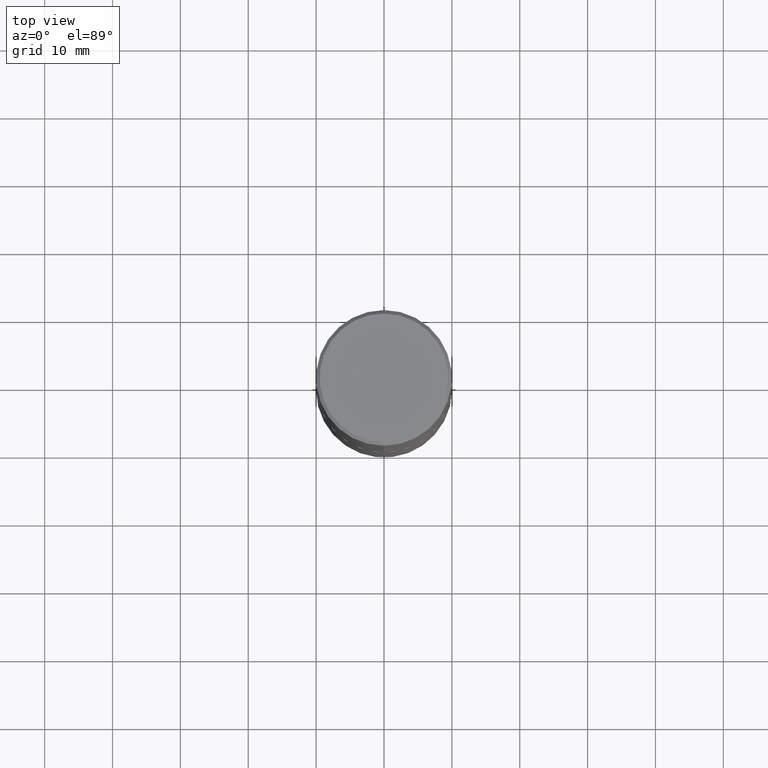
[diagram: clean part render]
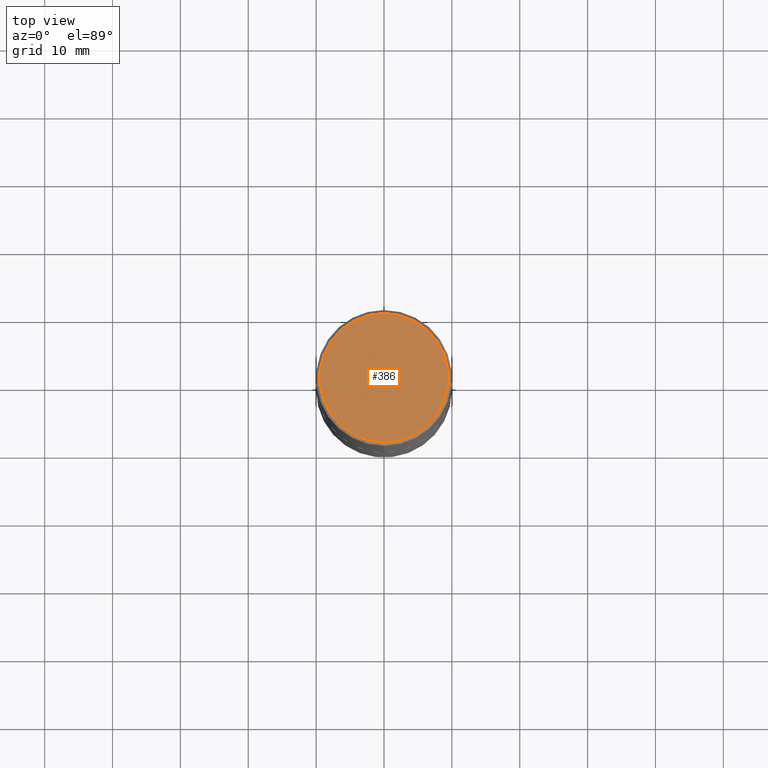
[diagram: same view with one face highlighted and labeled with its STEP entity id]
A machine part, top view. The second image highlights one B-rep face of the part: STEP entity #386.
In plain terms, the highlighted planar face has unit normal (0, -0, -1).
Its self-contained STEP definition (entity closure, byte-faithful):
#28 = VERTEX_POINT ( 'NONE', #308 ) ;
#29 = ORIENTED_EDGE ( 'NONE', *, *, #247, .T. ) ;
#87 = DIRECTION ( 'NONE',  ( -2.446310600165217615E-29, 3.490275841951731758E-15, 1.000000000000000000 ) ) ;
#90 = DIRECTION ( 'NONE',  ( -2.446310600165217615E-29, 3.490275841951731758E-15, 1.000000000000000000 ) ) ;
#95 = CARTESIAN_POINT ( 'NONE',  ( 2.609533152651356620E-15, 0.3736999999999999211, -1.263990460575568665E-15 ) ) ;
#127 = PLANE ( 'NONE',  #409 ) ;
#130 = EDGE_CURVE ( 'NONE', #28, #403, #397, .T. ) ;
#157 = CIRCLE ( 'NONE', #356, 0.3736999999999999211 ) ;
#182 = ORIENTED_EDGE ( 'NONE', *, *, #130, .T. ) ;
#187 = DIRECTION ( 'NONE',  ( 6.982962677686265922E-15, 1.000000000000000000, -3.490275841951731363E-15 ) ) ;
#194 = FACE_OUTER_BOUND ( 'NONE', #311, .T. ) ;
#218 = CARTESIAN_POINT ( 'NONE',  ( -1.972979909697315555E-45, 2.814950854976294212E-31, 8.065124312358642244E-17 ) ) ;
#247 = EDGE_CURVE ( 'NONE', #403, #28, #157, .T. ) ;
#285 = CARTESIAN_POINT ( 'NONE',  ( -1.972979909697315555E-45, 2.814950854976294212E-31, 8.065124312358642244E-17 ) ) ;
#286 = DIRECTION ( 'NONE',  ( -6.982962677686265133E-15, -1.000000000000000000, 3.490275841951731363E-15 ) ) ;
#308 = CARTESIAN_POINT ( 'NONE',  ( -2.632373081744935921E-15, -0.3736999999999999211, 1.384967325260948274E-15 ) ) ;
#311 = EDGE_LOOP ( 'NONE', ( #29, #182 ) ) ;
#317 = DIRECTION ( 'NONE',  ( 2.446310600165217615E-29, -3.490275841951731363E-15, -1.000000000000000000 ) ) ;
#344 = DIRECTION ( 'NONE',  ( -6.982962677686265133E-15, -1.000000000000000000, 3.490275841951731363E-15 ) ) ;
#349 = AXIS2_PLACEMENT_3D ( 'NONE', #285, #90, #344 ) ;
#356 = AXIS2_PLACEMENT_3D ( 'NONE', #218, #87, #286 ) ;
#386 = ADVANCED_FACE ( 'NONE', ( #194 ), #127, .F. ) ;
#397 = CIRCLE ( 'NONE', #349, 0.3736999999999999211 ) ;
#403 = VERTEX_POINT ( 'NONE', #418 ) ;
#409 = AXIS2_PLACEMENT_3D ( 'NONE', #95, #317, #187 ) ;
#418 = CARTESIAN_POINT ( 'NONE',  ( 2.679362779428219918E-15, 0.3736999999999999211, -1.223664839013775133E-15 ) ) ;